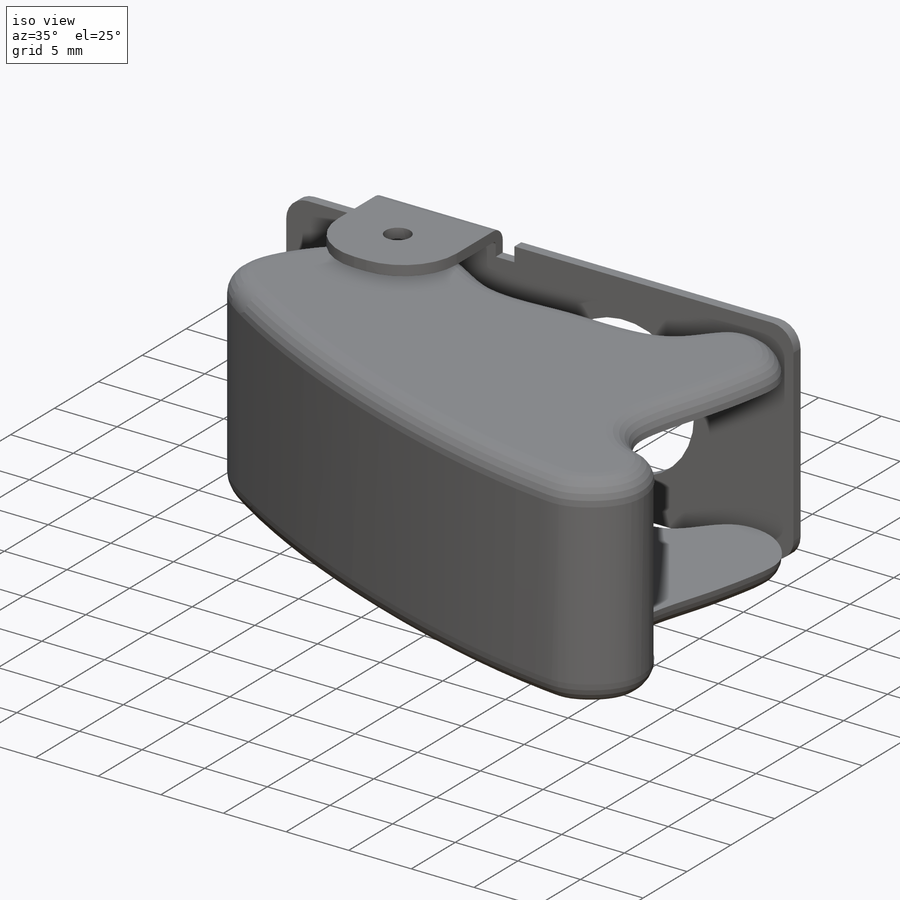
[diagram: iso view]
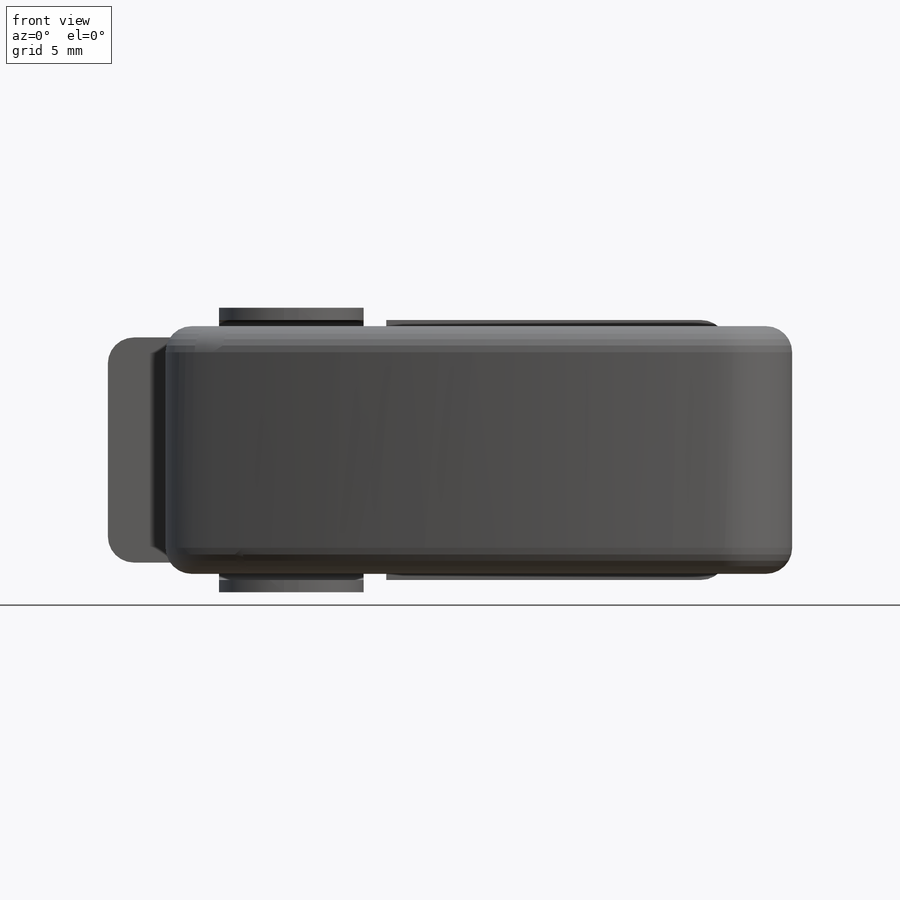
[diagram: front view]
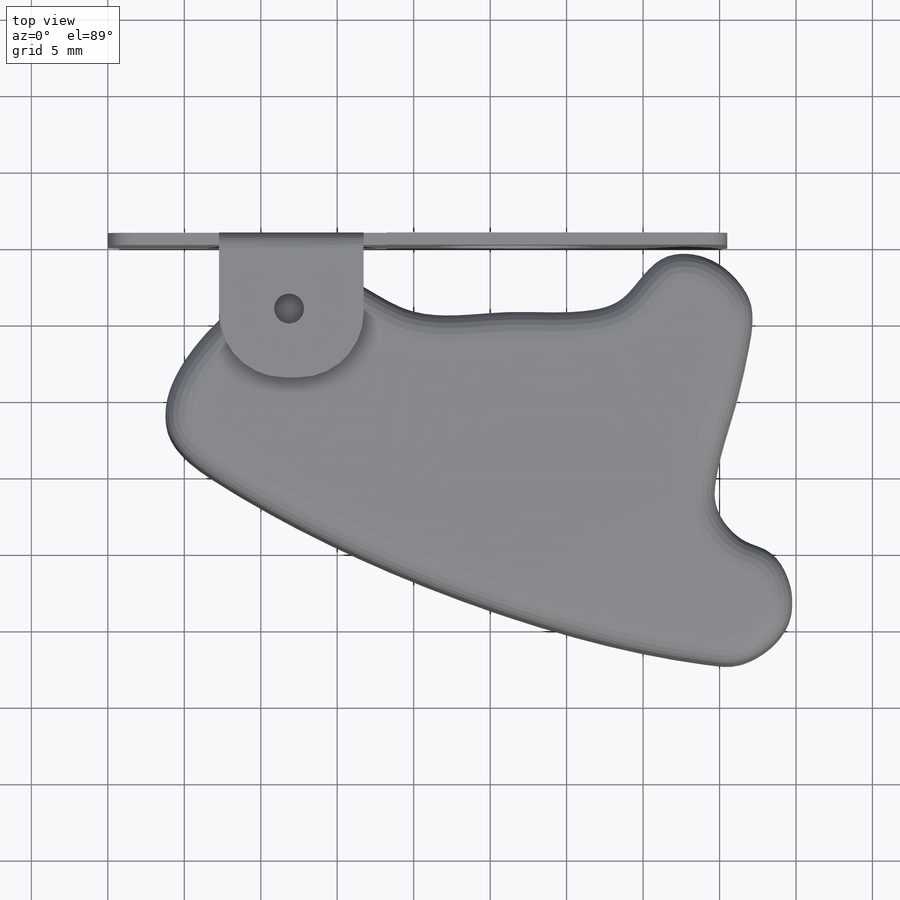
[diagram: top view]
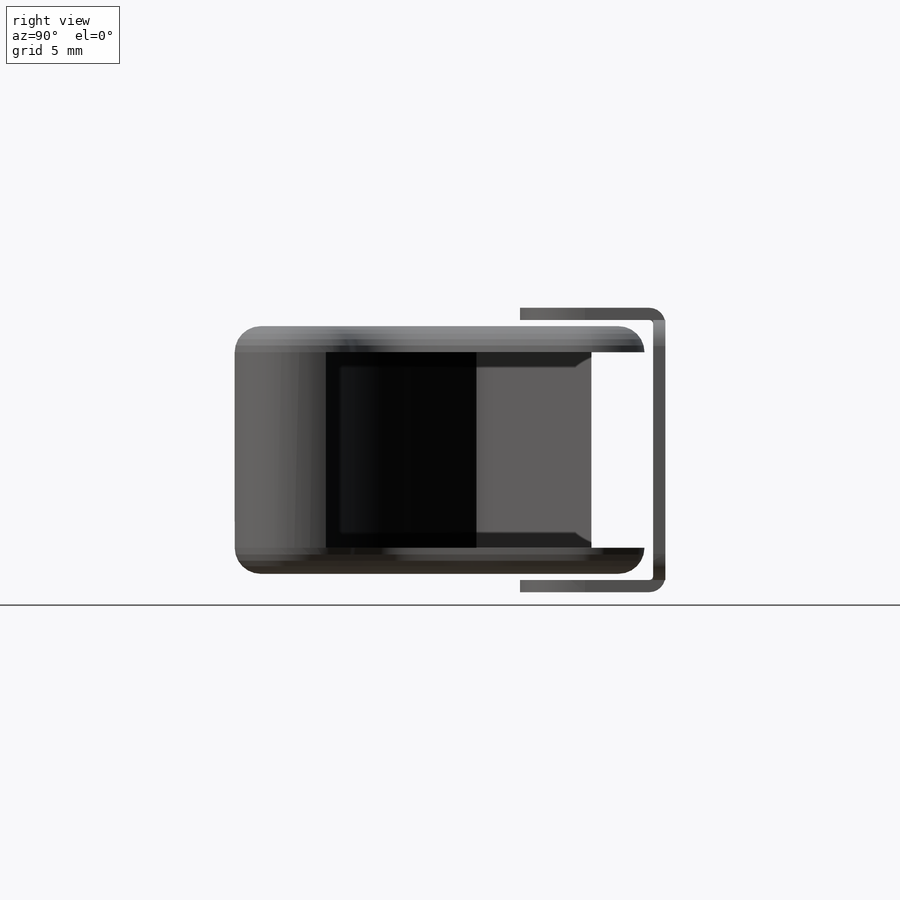
[diagram: right view]
SOLIDWORKS PART (.sldprt)
format: sldprt  version: not decoded by parser v0  size: 1,044,992 bytes
history: native  units: mm
features: sketch x18, sheet_metal_op x11, fillet x3, cut_extrude x3, material x1, mirror x1, extrude x1, move_body x1 + 7 further entries (+13 scaffold rows collapsed; 5 parser-record rows omitted)
feature tree (64):
  scaffold x13  (default folders/planes/origin — collapsed)
  material  "Material <not specified>"
  sketch  "Sketch2"  dims[c1.D5=11.1mm c1.D1=40.5mm c1.D2=40.5mm c1.D3=12.0mm c1.D4=17.0mm c1.D6=15.0mm c2.D1=76.2mm c2.D2=0.5 c2.D3=0.0mm c2.D6=500.0mm]
  sheet_metal_op  "Base-Flange1"
  sketch  "Sketch9"  dims[c1.D1=0.254mm c1.D4=90.0deg c1.D5=1.0 c1.D8=0.4mm c1.D9=0.4mm c2.D1=0.254mm c2.D2=500.0mm c2.D3=0.0mm c2.D6=10.0mm c2.D7=9.5mm]
  fillet  "Fillet1"  Radius=4.25mm
  fillet  "Fillet2"  Radius=1.71mm
  mirror  "Mirror1"
  sheet_metal_op  "MirrorBend1"
  sketch  "Sketch12"
  cut_extrude  "Cut-Extrude1"  [1 undecoded]
  sketch  "Sketch13"  dims[Sketch Picture3=0.0 D1=40.5mm]
  extrude  "Boss-Extrude1"  Depth=16.2mm
  fillet  "Fillet3"  Radius=1.71mm
  sketch  "Sketch15"  dims[D1=0.0mm D2=1.524mm]
  cut_extrude  "Cut-Extrude2"  Depth=1.27mm
  sketch  "Sketch16"  dims[D1=5.0mm]
  cut_extrude  "Cut-Extrude3"  [1 undecoded]
  move_body  "Body-Move/Copy1"
  sketch  "Bend-Lines1"
  sketch  "Bounding-Box1"
  sheet_metal_op  "Sheet-Metal1"
  "Flat-Pattern1"
  sketch  "Bend-Lines2"
  sketch  "Bounding-Box2"
  parser-record x5  (decoder bookkeeping rows leaked as tree rows — omitted from the tree; the rows remain in map.json)
  sheet_metal_op  "Sheet-Metal2"
  sheet_metal_op  "Flat-Pattern1"
  sketch  "Bend-Lines2"
  sketch  "Bounding-Box2"
  sheet_metal_op  "Sheet-Metal3"
  sheet_metal_op  "Flat-Pattern3"
  sketch  "Bend-Lines3"
  sketch  "Bounding-Box3"
  "Flatten-<EdgeBend1>2"
  "Flatten-<MirrorBend1>1"
  sheet_metal_op  "Sheet-Metal4"
  sheet_metal_op  "Flat-Pattern3"
  sketch  "Bend-Lines3"
  sketch  "Bounding-Box3"
  "Flatten-<EdgeBend1>2"
  "Flatten-<MirrorBend1>1"
  sheet_metal_op  "Sheet-Metal7"
  sheet_metal_op  "Flat-Pattern3"
  sketch  "Bend-Lines3"
  sketch  "Bounding-Box3"
  "Flatten-<EdgeBend1>2"
  "Flatten-<MirrorBend1>1"
decode coverage: 10 of 38 modeling features carry decoded parameters; 7 rows unclassified (native names shown)
note: 2 parameter values undecoded
note: suppression state not decoded; provenance and decode notes live in map.json
